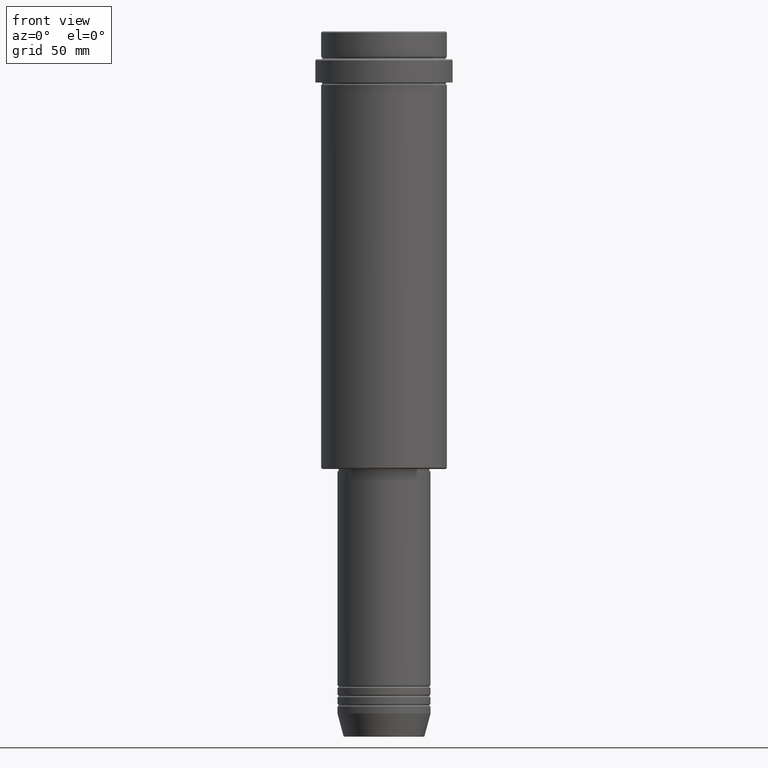
[diagram: clean part render]
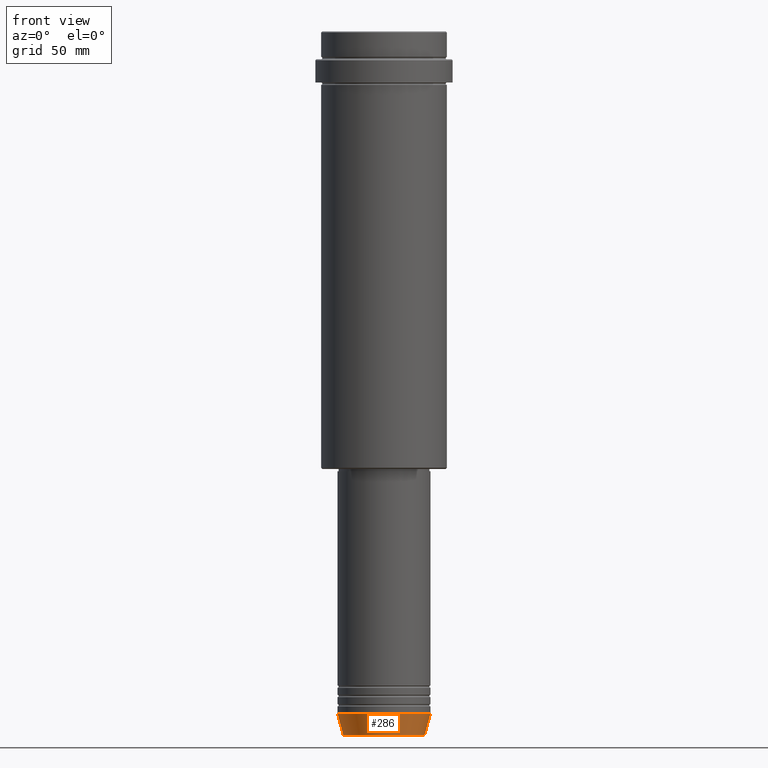
[diagram: same view with one face highlighted and labeled with its STEP entity id]
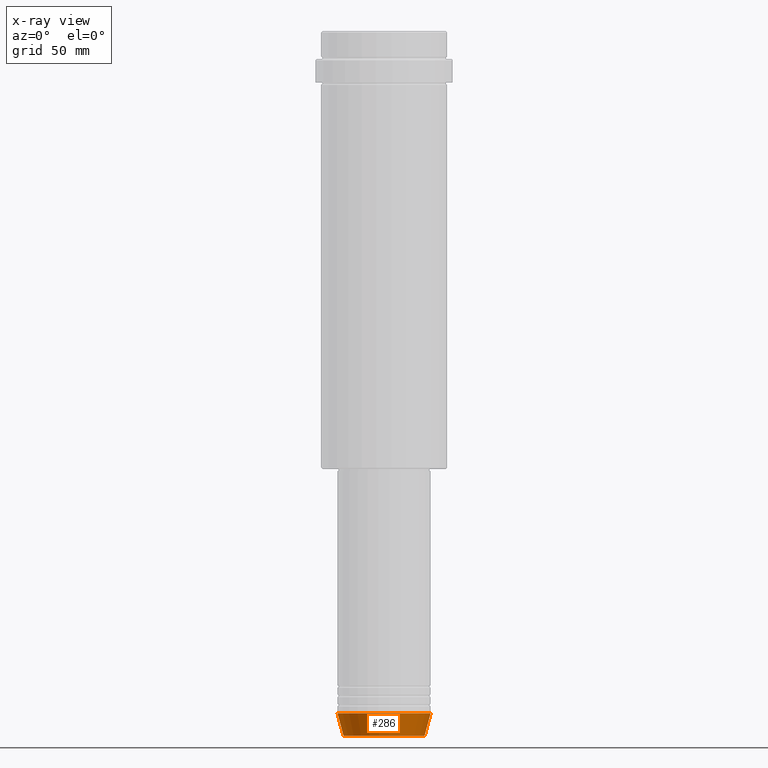
[diagram: x-ray of the same camera — body ghosted, the highlighted face saturated]
A machine part, front view. The second image highlights one B-rep face of the part: STEP entity #286.
The next image is the same camera in x-ray: the body ghosted, the highlighted face saturated — about 0% of this face is hidden behind the body in this view.
In plain terms, the highlighted conical surface has half-angle 15 deg.
Its self-contained STEP definition (entity closure, byte-faithful):
#1 = CARTESIAN_POINT ( 'NONE',  ( -20.00000000000000000, 2.449293598294706513E-15, -293.0000000000000000 ) ) ;
#153 = CARTESIAN_POINT ( 'NONE',  ( -20.00000000000000000, 2.449293598294706513E-15, -293.0000000000000000 ) ) ;
#229 = ORIENTED_EDGE ( 'NONE', *, *, #548, .T. ) ;
#265 = LINE ( 'NONE', #153, #406 ) ;
#275 = LINE ( 'NONE', #823, #551 ) ;
#286 = ADVANCED_FACE ( 'NONE', ( #347 ), #1128, .T. ) ;
#347 = FACE_OUTER_BOUND ( 'NONE', #909, .T. ) ;
#406 = VECTOR ( 'NONE', #812, 1000.000000000000114 ) ;
#450 = CIRCLE ( 'NONE', #1306, 17.41980749484382684 ) ;
#464 = DIRECTION ( 'NONE',  ( -0.000000000000000000, -0.000000000000000000, 1.000000000000000000 ) ) ;
#497 = AXIS2_PLACEMENT_3D ( 'NONE', #1238, #1138, #1255 ) ;
#519 = DIRECTION ( 'NONE',  ( -0.000000000000000000, -0.000000000000000000, 1.000000000000000000 ) ) ;
#548 = EDGE_CURVE ( 'NONE', #649, #981, #450, .T. ) ;
#551 = VECTOR ( 'NONE', #1165, 1000.000000000000114 ) ;
#571 = VERTEX_POINT ( 'NONE', #1246 ) ;
#576 = ORIENTED_EDGE ( 'NONE', *, *, #915, .T. ) ;
#595 = CARTESIAN_POINT ( 'NONE',  ( 17.41980749484382684, 0.000000000000000000, -302.6294095225512137 ) ) ;
#649 = VERTEX_POINT ( 'NONE', #743 ) ;
#680 = VERTEX_POINT ( 'NONE', #1 ) ;
#683 = CARTESIAN_POINT ( 'NONE',  ( 0.000000000000000000, 0.000000000000000000, -302.6294095225512137 ) ) ;
#713 = EDGE_CURVE ( 'NONE', #680, #571, #782, .T. ) ;
#726 = AXIS2_PLACEMENT_3D ( 'NONE', #1150, #519, #1405 ) ;
#743 = CARTESIAN_POINT ( 'NONE',  ( -17.41980749484382684, 2.291302373663531915E-15, -302.6294095225512137 ) ) ;
#782 = CIRCLE ( 'NONE', #726, 20.00000000000000000 ) ;
#790 = ORIENTED_EDGE ( 'NONE', *, *, #713, .F. ) ;
#812 = DIRECTION ( 'NONE',  ( -0.2588190451025211836, 3.169619151431770488E-17, 0.9659258262890680902 ) ) ;
#823 = CARTESIAN_POINT ( 'NONE',  ( 20.00000000000000000, 0.000000000000000000, -293.0000000000000000 ) ) ;
#874 = ORIENTED_EDGE ( 'NONE', *, *, #1379, .F. ) ;
#908 = DIRECTION ( 'NONE',  ( 1.000000000000000000, 0.000000000000000000, 0.000000000000000000 ) ) ;
#909 = EDGE_LOOP ( 'NONE', ( #874, #229, #576, #790 ) ) ;
#915 = EDGE_CURVE ( 'NONE', #981, #571, #275, .T. ) ;
#981 = VERTEX_POINT ( 'NONE', #595 ) ;
#1128 = CONICAL_SURFACE ( 'NONE', #497, 20.00000000000000000, 0.2617993877991499074 ) ;
#1138 = DIRECTION ( 'NONE',  ( -0.000000000000000000, -0.000000000000000000, 1.000000000000000000 ) ) ;
#1150 = CARTESIAN_POINT ( 'NONE',  ( 0.000000000000000000, 0.000000000000000000, -293.0000000000000000 ) ) ;
#1165 = DIRECTION ( 'NONE',  ( 0.2588190451025211836, 0.000000000000000000, 0.9659258262890680902 ) ) ;
#1238 = CARTESIAN_POINT ( 'NONE',  ( 0.000000000000000000, 0.000000000000000000, -293.0000000000000000 ) ) ;
#1246 = CARTESIAN_POINT ( 'NONE',  ( 20.00000000000000000, 0.000000000000000000, -293.0000000000000000 ) ) ;
#1255 = DIRECTION ( 'NONE',  ( 1.000000000000000000, 0.000000000000000000, 0.000000000000000000 ) ) ;
#1306 = AXIS2_PLACEMENT_3D ( 'NONE', #683, #464, #908 ) ;
#1379 = EDGE_CURVE ( 'NONE', #649, #680, #265, .T. ) ;
#1405 = DIRECTION ( 'NONE',  ( 1.000000000000000000, 0.000000000000000000, 0.000000000000000000 ) ) ;